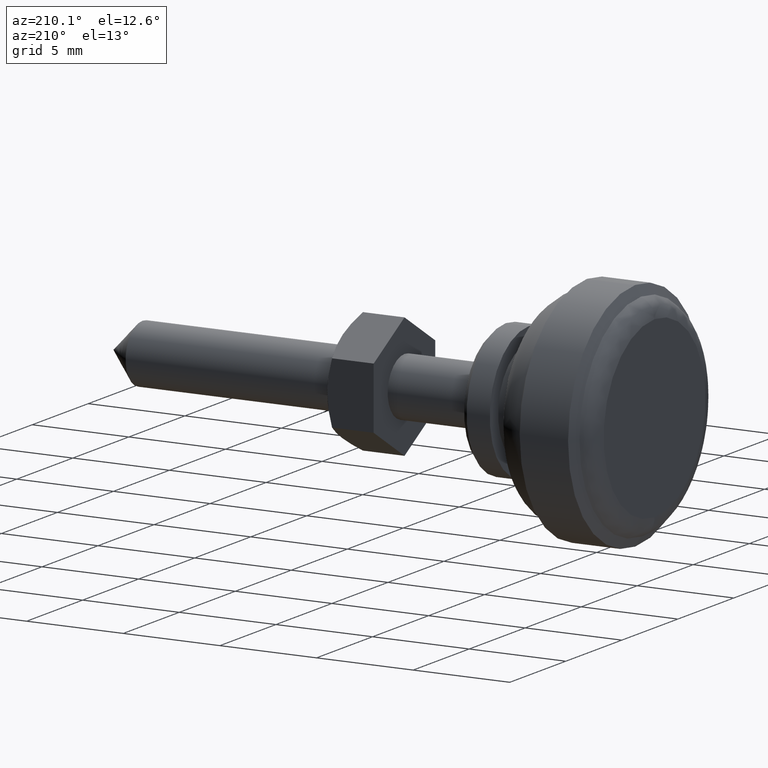
[diagram: clean part render]
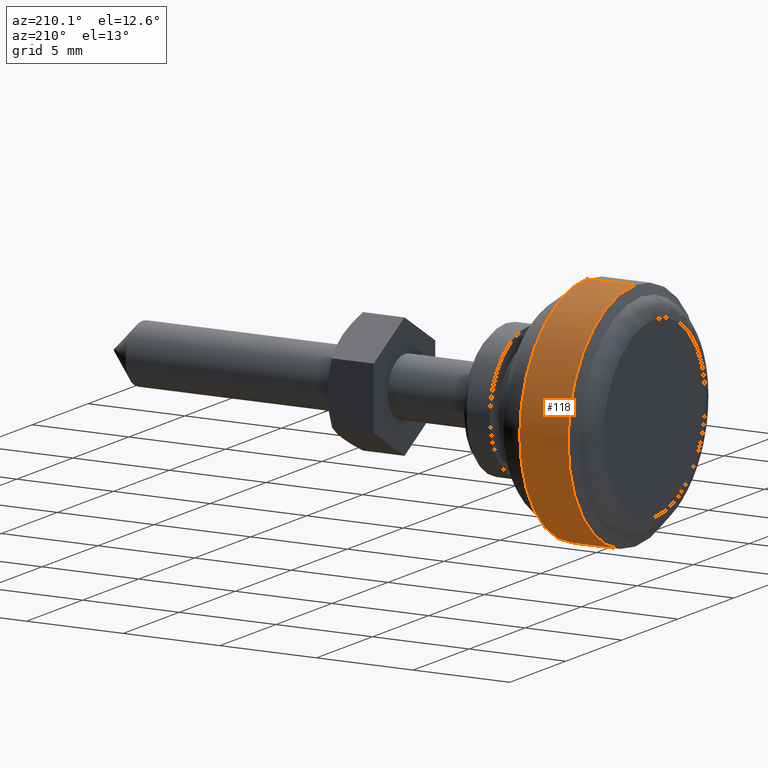
[diagram: same view with one face highlighted and labeled with its STEP entity id]
A machine part, auxiliary view. The second image highlights one B-rep face of the part: STEP entity #118.
In plain terms, the highlighted cylindrical surface (partial cylindrical patch) has radius 6 mm, axis along (1, 0, 0).
Its self-contained STEP definition (entity closure, byte-faithful):
#118=ADVANCED_FACE('',(#216),#215,.T.);
#215=CYLINDRICAL_SURFACE('',#605,6.00000000000E+00);
#216=FACE_OUTER_BOUND('',#606,.T.);
#602=CARTESIAN_POINT('',(0.00000000000E+00,0.00000000000E+00,0.00000000000E+00));
#603=DIRECTION('',(1.00000000000E+00,-0.00000000000E+00,-0.00000000000E+00));
#604=DIRECTION('',(-0.00000000000E+00,-0.00000000000E+00,-1.00000000000E+00));
#605=AXIS2_PLACEMENT_3D('',#602,#603,#604);
#606=EDGE_LOOP('',(#926,#927,#928,#929));
#926=ORIENTED_EDGE('',*,*,#1092,.T.);
#927=ORIENTED_EDGE('',*,*,#1093,.F.);
#928=ORIENTED_EDGE('',*,*,#1094,.F.);
#929=ORIENTED_EDGE('',*,*,#1095,.T.);
#1092=EDGE_CURVE('',#1283,#1284,#1285,.T.);
#1093=EDGE_CURVE('',#1291,#1284,#1292,.T.);
#1094=EDGE_CURVE('',#1298,#1291,#1299,.T.);
#1095=EDGE_CURVE('',#1298,#1283,#1305,.T.);
#1283=VERTEX_POINT('',#1798);
#1284=VERTEX_POINT('',#1799);
#1285=CIRCLE('',#1803,6.00000000000E+00);
#1291=VERTEX_POINT('',#1804);
#1292=(BOUNDED_CURVE() B_SPLINE_CURVE(1,(#1805,#1806),.UNSPECIFIED.,.F.,.F.) B_SPLINE_CURVE_WITH_KNOTS((2,2),(8.33333233997E-02,9.16666663280E-01),.UNSPECIFIED.) CURVE() GEOMETRIC_REPRESENTATION_ITEM() RATIONAL_B_SPLINE_CURVE((1.00000000000E+00,1.00000000000E+00)) REPRESENTATION_ITEM('') );
#1298=VERTEX_POINT('',#1807);
#1299=CIRCLE('',#1811,6.00000000000E+00);
#1305=(BOUNDED_CURVE() B_SPLINE_CURVE(1,(#1812,#1813),.UNSPECIFIED.,.F.,.F.) B_SPLINE_CURVE_WITH_KNOTS((2,2),(8.33333333333E-02,9.16666666667E-01),.UNSPECIFIED.) CURVE() GEOMETRIC_REPRESENTATION_ITEM() RATIONAL_B_SPLINE_CURVE((7.50000000000E-01,7.50000000000E-01)) REPRESENTATION_ITEM('') );
#1798=CARTESIAN_POINT('',(-2.45000000000E+01,0.00000000000E+00,6.00000000000E+00));
#1799=CARTESIAN_POINT('',(-2.45000000000E+01,-1.83556873405E-14,-6.00000000000E+00));
#1800=CARTESIAN_POINT('',(-2.45000000000E+01,0.00000000000E+00,0.00000000000E+00));
#1801=DIRECTION('',(-1.00000000000E+00,0.00000000000E+00,0.00000000000E+00));
#1802=DIRECTION('',(0.00000000000E+00,-1.22460635382E-16,1.00000000000E+00));
#1803=AXIS2_PLACEMENT_3D('',#1800,#1801,#1802);
#1804=CARTESIAN_POINT('',(-2.70000000000E+01,0.00000000000E+00,-6.00000000000E+00));
#1805=CARTESIAN_POINT('',(-2.70000000298E+01,0.00000000000E+00,-6.00000000000E+00));
#1806=CARTESIAN_POINT('',(-2.45000000102E+01,0.00000000000E+00,-6.00000000000E+00));
#1807=CARTESIAN_POINT('',(-2.70000000000E+01,0.00000000000E+00,6.00000000000E+00));
#1808=CARTESIAN_POINT('',(-2.70000000000E+01,0.00000000000E+00,0.00000000000E+00));
#1809=DIRECTION('',(-1.00000000000E+00,0.00000000000E+00,0.00000000000E+00));
#1810=DIRECTION('',(0.00000000000E+00,-1.22460635382E-16,1.00000000000E+00));
#1811=AXIS2_PLACEMENT_3D('',#1808,#1809,#1810);
#1812=CARTESIAN_POINT('',(-2.70000000000E+01,0.00000000000E+00,6.00000000000E+00));
#1813=CARTESIAN_POINT('',(-2.45000000000E+01,0.00000000000E+00,6.00000000000E+00));